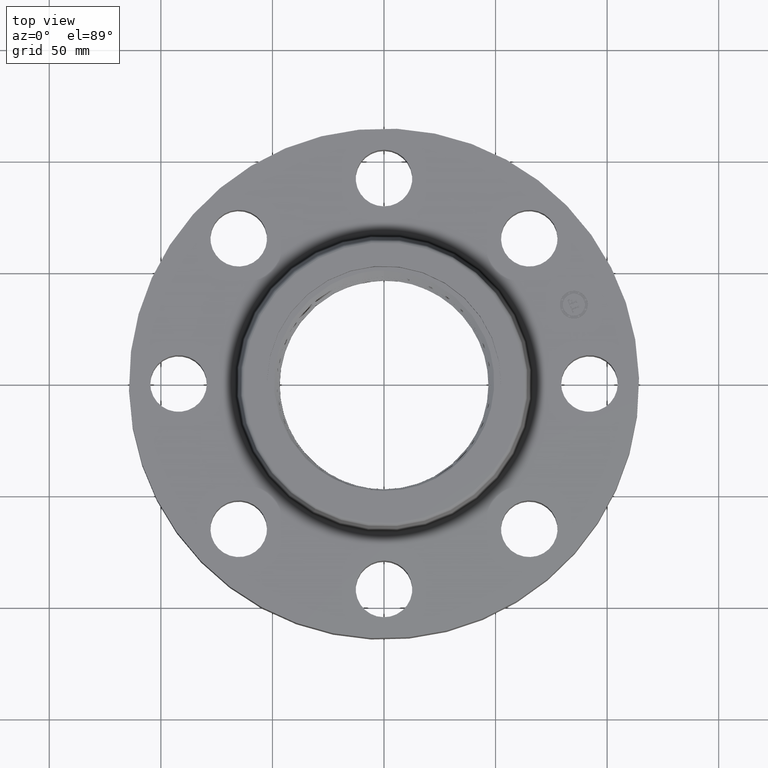
[diagram: clean part render]
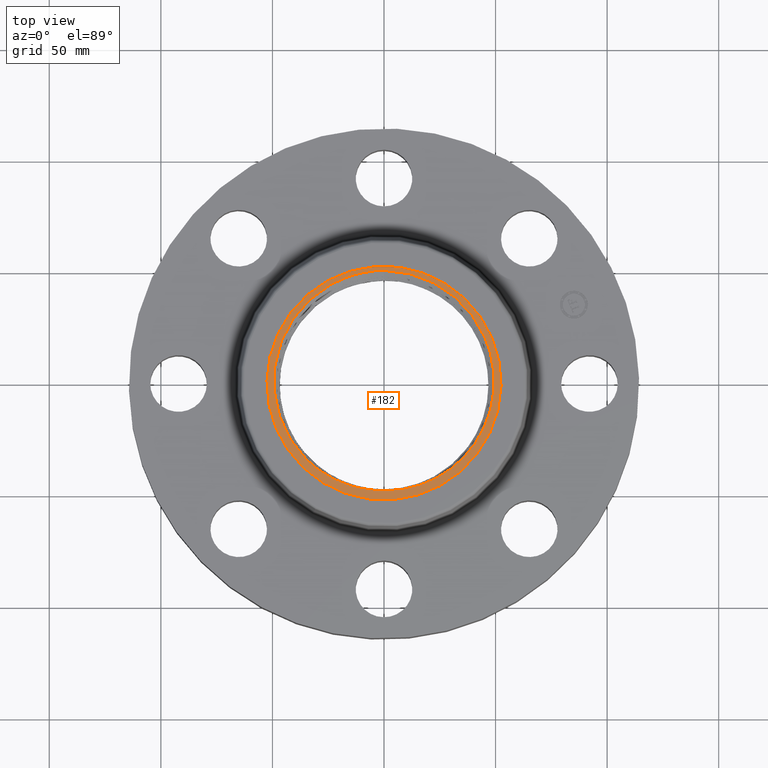
[diagram: same view with one face highlighted and labeled with its STEP entity id]
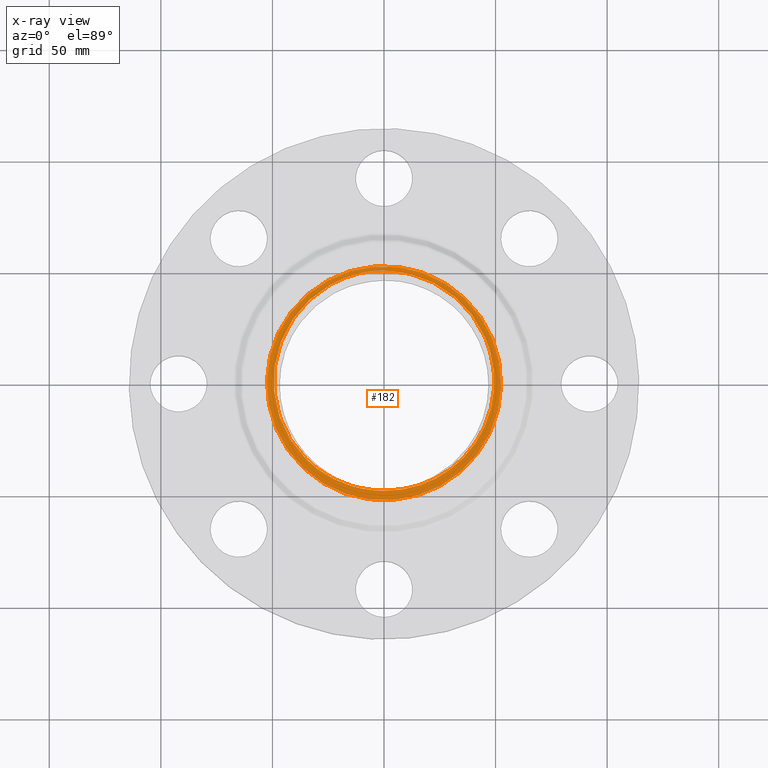
[diagram: x-ray of the same camera — body ghosted, the highlighted face saturated]
A machine part, top view. The second image highlights one B-rep face of the part: STEP entity #182.
The next image is the same camera in x-ray: the body ghosted, the highlighted face saturated — about 0% of this face is hidden behind the body in this view.
In plain terms, the highlighted planar face has unit normal (0, 0, 1).
Its self-contained STEP definition (entity closure, byte-faithful):
#38=AXIS2_PLACEMENT_3D('Plane Axis2P3D',#35,#36,#37) ;
#42=AXIS2_PLACEMENT_3D('Circle Axis2P3D',#40,#41,$) ;
#51=AXIS2_PLACEMENT_3D('Circle Axis2P3D',#49,#50,$) ;
#60=AXIS2_PLACEMENT_3D('Circle Axis2P3D',#58,#59,$) ;
#35=CARTESIAN_POINT('Axis2P3D Location',(2.76244469119E-016,-6.71378962923E-016,1.56000000001)) ;
#40=CARTESIAN_POINT('Axis2P3D Location',(0.,0.,1.56000000001)) ;
#44=CARTESIAN_POINT('Vertex',(-0.990013737222,1.81220799031,1.56000000001)) ;
#46=CARTESIAN_POINT('Vertex',(0.990013737222,-1.81220799031,1.56000000001)) ;
#49=CARTESIAN_POINT('Axis2P3D Location',(0.,0.,1.56000000001)) ;
#58=CARTESIAN_POINT('Axis2P3D Location',(-3.49676543189E-018,-1.1189649382E-016,1.56000000001)) ;
#62=CARTESIAN_POINT('Vertex',(-0.224608176908,-1.88232290633,1.56)) ;
#64=CARTESIAN_POINT('Vertex',(-0.0646460411715,-1.89457363177,1.56000000001)) ;
#68=CARTESIAN_POINT('Control Point',(-0.94939940171,1.73786663072,1.56000000001)) ;
#69=CARTESIAN_POINT('Control Point',(-1.07630043476,1.66572364036,1.56000000001)) ;
#70=CARTESIAN_POINT('Control Point',(-1.19645403312,1.58194237486,1.56000000001)) ;
#71=CARTESIAN_POINT('Control Point',(-1.30842295173,1.48735528915,1.56000000001)) ;
#72=CARTESIAN_POINT('Control Point',(-1.51345160746,1.27876275919,1.56000000001)) ;
#73=CARTESIAN_POINT('Control Point',(-1.67650449902,1.03651585352,1.56000000001)) ;
#74=CARTESIAN_POINT('Control Point',(-1.74650927547,0.908256127162,1.56000000001)) ;
#75=CARTESIAN_POINT('Control Point',(-1.83302371962,0.707414525146,1.56000000001)) ;
#76=CARTESIAN_POINT('Control Point',(-1.8906773437,0.497448757426,1.56000000001)) ;
#77=CARTESIAN_POINT('Control Point',(-1.90662517294,0.426647119669,1.56000000001)) ;
#78=CARTESIAN_POINT('Control Point',(-1.92873436442,0.301675701573,1.56000000001)) ;
#79=CARTESIAN_POINT('Control Point',(-1.94061773806,0.175469763929,1.56000000001)) ;
#80=CARTESIAN_POINT('Control Point',(-1.94382173465,0.121241844988,1.56000000001)) ;
#81=CARTESIAN_POINT('Control Point',(-1.94863112423,-0.0778325022257,1.56000000001)) ;
#82=CARTESIAN_POINT('Control Point',(-1.92800610673,-0.276362907915,1.56000000001)) ;
#83=CARTESIAN_POINT('Control Point',(-1.89958829166,-0.41879154132,1.56000000001)) ;
#84=CARTESIAN_POINT('Control Point',(-1.81141712101,-0.713884485902,1.56000000001)) ;
#85=CARTESIAN_POINT('Control Point',(-1.66717727259,-0.985631929591,1.56000000001)) ;
#86=CARTESIAN_POINT('Control Point',(-1.57596968596,-1.12083753011,1.56000000001)) ;
#87=CARTESIAN_POINT('Control Point',(-1.37833039882,-1.35598344,1.56000000001)) ;
#88=CARTESIAN_POINT('Control Point',(-1.13893674706,-1.54705772664,1.56000000001)) ;
#89=CARTESIAN_POINT('Control Point',(-1.01822913292,-1.62607543431,1.56000000001)) ;
#90=CARTESIAN_POINT('Control Point',(-0.792594898076,-1.74512324427,1.56000000001)) ;
#91=CARTESIAN_POINT('Control Point',(-0.551062469924,-1.82498508627,1.56000000001)) ;
#92=CARTESIAN_POINT('Control Point',(-0.443520916997,-1.8520480165,1.56000000001)) ;
#93=CARTESIAN_POINT('Control Point',(-0.334441058342,-1.87118590471,1.56000000001)) ;
#94=CARTESIAN_POINT('Control Point',(-0.224608174983,-1.88232292669,1.56000000001)) ;
#95=CARTESIAN_POINT('Vertex',(-0.94939940171,1.73786663072,1.56000000001)) ;
#99=CARTESIAN_POINT('Control Point',(-0.156404601431,1.98828225867,1.56000000001)) ;
#100=CARTESIAN_POINT('Control Point',(-0.31510029086,1.97311002993,1.56000000001)) ;
#101=CARTESIAN_POINT('Control Point',(-0.472146123691,1.94209218412,1.56000000001)) ;
#102=CARTESIAN_POINT('Control Point',(-0.625435734604,1.89544592879,1.56000000001)) ;
#103=CARTESIAN_POINT('Control Point',(-0.7806913457,1.83056061508,1.56000000001)) ;
#104=CARTESIAN_POINT('Control Point',(-0.927415272332,1.75021070064,1.56000000001)) ;
#105=CARTESIAN_POINT('Control Point',(-0.93476572982,1.74613455942,1.56000000001)) ;
#106=CARTESIAN_POINT('Control Point',(-0.942093746914,1.74201988126,1.56000000001)) ;
#107=CARTESIAN_POINT('Control Point',(-0.94939940171,1.73786663072,1.56000000001)) ;
#108=CARTESIAN_POINT('Vertex',(-0.156404601431,1.98828225867,1.56000000001)) ;
#112=CARTESIAN_POINT('Control Point',(-0.156404601431,1.98828225867,1.56000000001)) ;
#113=CARTESIAN_POINT('Control Point',(-0.125160177791,1.99026229922,1.56000000001)) ;
#114=CARTESIAN_POINT('Control Point',(-0.0938812995051,1.99162892253,1.56000000001)) ;
#115=CARTESIAN_POINT('Control Point',(-0.0625840251648,1.99238121254,1.56000000001)) ;
#116=CARTESIAN_POINT('Control Point',(-0.0312844605692,1.99251888379,1.56000000001)) ;
#117=CARTESIAN_POINT('Control Point',(1.27974572427E-006,1.99204228713,1.56000000001)) ;
#118=CARTESIAN_POINT('Vertex',(1.27974572434E-006,1.99204228713,1.56000000001)) ;
#122=CARTESIAN_POINT('Control Point',(1.27974572524E-006,1.99204228713,1.56000000001)) ;
#123=CARTESIAN_POINT('Control Point',(0.146414854979,1.98981187066,1.56000000001)) ;
#124=CARTESIAN_POINT('Control Point',(0.292525560951,1.97412821958,1.56000000001)) ;
#125=CARTESIAN_POINT('Control Point',(0.436649512925,1.9450347905,1.56000000001)) ;
#126=CARTESIAN_POINT('Control Point',(0.717727926651,1.86071008128,1.56000000001)) ;
#127=CARTESIAN_POINT('Control Point',(0.978182820366,1.72669038143,1.56000000001)) ;
#128=CARTESIAN_POINT('Control Point',(1.10177843381,1.64786090486,1.56000000001)) ;
#129=CARTESIAN_POINT('Control Point',(1.34730230074,1.45720898575,1.56000000001)) ;
#130=CARTESIAN_POINT('Control Point',(1.55097762016,1.22257056502,1.56000000001)) ;
#131=CARTESIAN_POINT('Control Point',(1.64540211996,1.0876053034,1.56000000001)) ;
#132=CARTESIAN_POINT('Control Point',(1.79574528985,0.816257449733,1.56000000001)) ;
#133=CARTESIAN_POINT('Control Point',(1.89005144666,0.521443308783,1.56000000001)) ;
#134=CARTESIAN_POINT('Control Point',(1.92136586957,0.379091987699,1.56000000001)) ;
#135=CARTESIAN_POINT('Control Point',(1.95044480361,0.144543230968,1.56000000001)) ;
#136=CARTESIAN_POINT('Control Point',(1.94399281064,-0.090909681968,1.56000000001)) ;
#137=CARTESIAN_POINT('Control Point',(1.93624866871,-0.181156737534,1.56000000001)) ;
#138=CARTESIAN_POINT('Control Point',(1.90252533441,-0.413963771515,1.56000000001)) ;
#139=CARTESIAN_POINT('Control Point',(1.83405296928,-0.639363223588,1.56000000001)) ;
#140=CARTESIAN_POINT('Control Point',(1.77910927735,-0.773620134729,1.56000000001)) ;
#141=CARTESIAN_POINT('Control Point',(1.64492464364,-1.03011061424,1.56000000001)) ;
#142=CARTESIAN_POINT('Control Point',(1.46582283822,-1.25698353588,1.56000000001)) ;
#143=CARTESIAN_POINT('Control Point',(1.36595768349,-1.36162481028,1.56000000001)) ;
#144=CARTESIAN_POINT('Control Point',(1.21702776949,-1.49090767142,1.56000000001)) ;
#145=CARTESIAN_POINT('Control Point',(1.05361939869,-1.59965959188,1.56000000001)) ;
#146=CARTESIAN_POINT('Control Point',(1.00882541105,-1.62729883498,1.56000000001)) ;
#147=CARTESIAN_POINT('Control Point',(0.963129031343,-1.65337055767,1.56000000001)) ;
#148=CARTESIAN_POINT('Control Point',(0.916604343911,-1.6778364941,1.56000000001)) ;
#149=CARTESIAN_POINT('Vertex',(0.916604343911,-1.6778364941,1.56000000001)) ;
#153=CARTESIAN_POINT('Control Point',(0.916604343911,-1.6778364941,1.56000000001)) ;
#154=CARTESIAN_POINT('Control Point',(0.781340341705,-1.74896777196,1.56000000001)) ;
#155=CARTESIAN_POINT('Control Point',(0.639074372444,-1.80652607436,1.56000000001)) ;
#156=CARTESIAN_POINT('Control Point',(0.491613555862,-1.84957665718,1.56000000001)) ;
#157=CARTESIAN_POINT('Control Point',(0.303500747815,-1.884507928,1.56000000001)) ;
#158=CARTESIAN_POINT('Control Point',(0.113583617227,-1.89569439248,1.56000000001)) ;
#159=CARTESIAN_POINT('Control Point',(0.0757200938639,-1.89697806928,1.56000000001)) ;
#160=CARTESIAN_POINT('Control Point',(0.0378477814237,-1.89731674026,1.56000000001)) ;
#161=CARTESIAN_POINT('Control Point',(-1.84923399565E-006,-1.89671116009,1.56000000001)) ;
#162=CARTESIAN_POINT('Vertex',(-1.84923399561E-006,-1.89671116009,1.56000000001)) ;
#166=CARTESIAN_POINT('Control Point',(-0.0646460407041,-1.89457363436,1.56000000001)) ;
#167=CARTESIAN_POINT('Control Point',(-0.0517276307821,-1.89522154479,1.56000000001)) ;
#168=CARTESIAN_POINT('Control Point',(-0.0388027276005,-1.89575932206,1.56000000001)) ;
#169=CARTESIAN_POINT('Control Point',(-0.0258726083842,-1.89618688587,1.56000000001)) ;
#170=CARTESIAN_POINT('Control Point',(-0.0129385541037,-1.89650417756,1.56000000001)) ;
#171=CARTESIAN_POINT('Control Point',(-1.84923399403E-006,-1.89671116009,1.56000000001)) ;
#36=DIRECTION('Axis2P3D Direction',(0.,0.,0.0393700787402)) ;
#37=DIRECTION('Axis2P3D XDirection',(0.0393700787402,0.,0.)) ;
#41=DIRECTION('Axis2P3D Direction',(0.,0.,0.0393700787402)) ;
#50=DIRECTION('Axis2P3D Direction',(0.,0.,0.0393700787402)) ;
#59=DIRECTION('Axis2P3D Direction',(0.,0.,0.0393700787402)) ;
#55=ORIENTED_EDGE('',*,*,#48,.T.) ;
#56=ORIENTED_EDGE('',*,*,#53,.T.) ;
#174=ORIENTED_EDGE('',*,*,#66,.F.) ;
#175=ORIENTED_EDGE('',*,*,#97,.F.) ;
#176=ORIENTED_EDGE('',*,*,#110,.F.) ;
#177=ORIENTED_EDGE('',*,*,#120,.T.) ;
#178=ORIENTED_EDGE('',*,*,#151,.T.) ;
#179=ORIENTED_EDGE('',*,*,#164,.T.) ;
#180=ORIENTED_EDGE('',*,*,#172,.F.) ;
#181=FACE_BOUND('',#173,.T.) ;
#182=ADVANCED_FACE('PartBody',(#57,#181),#39,.T.) ;
#67=B_SPLINE_CURVE_WITH_KNOTS('',5,(#68,#69,#70,#71,#72,#73,#74,#75,#76,#77,#78,#79,#80,#81,#82,#83,#84,#85,#86,#87,#88,#89,#90,#91,#92,#93,#94),.UNSPECIFIED.,.F.,.U.,(6,3,3,3,3,3,3,3,6),(0.,25.9889712496,51.9817733915,64.9774406588,74.7240776026,100.726807978,130.009538861,156.042466948,176.143746205),.UNSPECIFIED.) ;
#98=B_SPLINE_CURVE_WITH_KNOTS('',5,(#99,#100,#101,#102,#103,#104,#105,#106,#107),.UNSPECIFIED.,.F.,.U.,(6,3,6),(0.,28.2823596523,29.7785370115),.UNSPECIFIED.) ;
#111=B_SPLINE_CURVE_WITH_KNOTS('',5,(#112,#113,#114,#115,#116,#117),.UNSPECIFIED.,.F.,.U.,(6,6),(0.,5.55411736613),.UNSPECIFIED.) ;
#121=B_SPLINE_CURVE_WITH_KNOTS('',5,(#122,#123,#124,#125,#126,#127,#128,#129,#130,#131,#132,#133,#134,#135,#136,#137,#138,#139,#140,#141,#142,#143,#144,#145,#146,#147,#148),.UNSPECIFIED.,.F.,.U.,(6,3,3,3,3,3,3,3,6),(0.,25.9926142923,52.0038498578,81.2779018881,107.27804575,123.517446847,149.496244167,175.475728567,184.995354386),.UNSPECIFIED.) ;
#152=B_SPLINE_CURVE_WITH_KNOTS('',5,(#153,#154,#155,#156,#157,#158,#159,#160,#161),.UNSPECIFIED.,.F.,.U.,(6,3,6),(0.,27.6769766345,34.5597902391),.UNSPECIFIED.) ;
#165=B_SPLINE_CURVE_WITH_KNOTS('',5,(#166,#167,#168,#169,#170,#171),.UNSPECIFIED.,.F.,.U.,(6,6),(2.95532828319,5.30781962144),.UNSPECIFIED.) ;
#43=CIRCLE('generated circle',#42,2.06500000001) ;
#52=CIRCLE('generated circle',#51,2.06500000001) ;
#61=CIRCLE('generated circle',#60,1.8956762268) ;
#48=EDGE_CURVE('',#45,#47,#43,.T.) ;
#53=EDGE_CURVE('',#47,#45,#52,.T.) ;
#66=EDGE_CURVE('',#63,#65,#61,.T.) ;
#97=EDGE_CURVE('',#96,#63,#67,.T.) ;
#110=EDGE_CURVE('',#109,#96,#98,.T.) ;
#120=EDGE_CURVE('',#109,#119,#111,.T.) ;
#151=EDGE_CURVE('',#119,#150,#121,.T.) ;
#164=EDGE_CURVE('',#150,#163,#152,.T.) ;
#172=EDGE_CURVE('',#65,#163,#165,.T.) ;
#54=EDGE_LOOP('',(#55,#56)) ;
#173=EDGE_LOOP('',(#174,#175,#176,#177,#178,#179,#180)) ;
#57=FACE_OUTER_BOUND('',#54,.T.) ;
#39=PLANE('',#38) ;
#45=VERTEX_POINT('',#44) ;
#47=VERTEX_POINT('',#46) ;
#63=VERTEX_POINT('',#62) ;
#65=VERTEX_POINT('',#64) ;
#96=VERTEX_POINT('',#95) ;
#109=VERTEX_POINT('',#108) ;
#119=VERTEX_POINT('',#118) ;
#150=VERTEX_POINT('',#149) ;
#163=VERTEX_POINT('',#162) ;